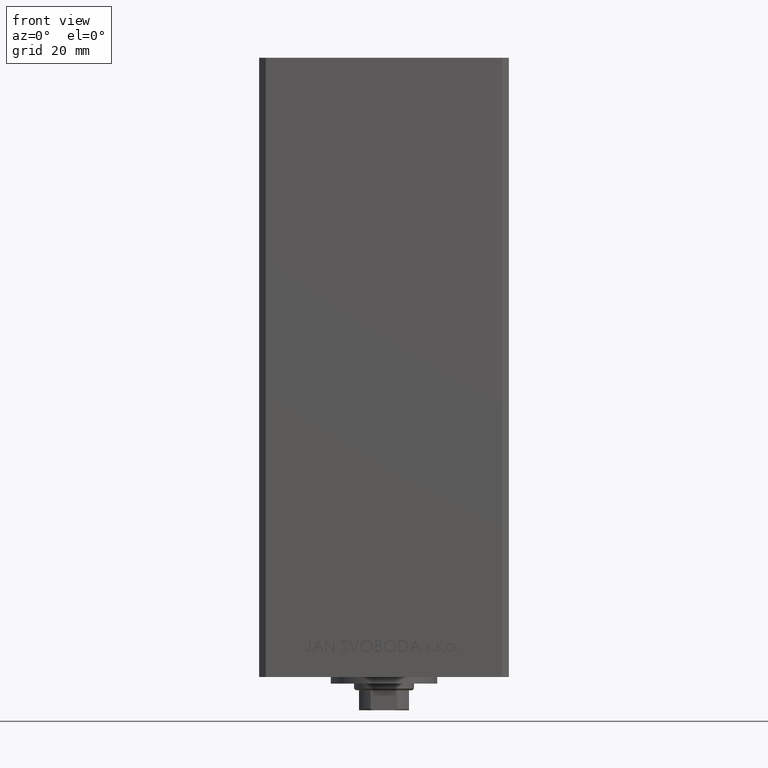
[diagram: clean part render]
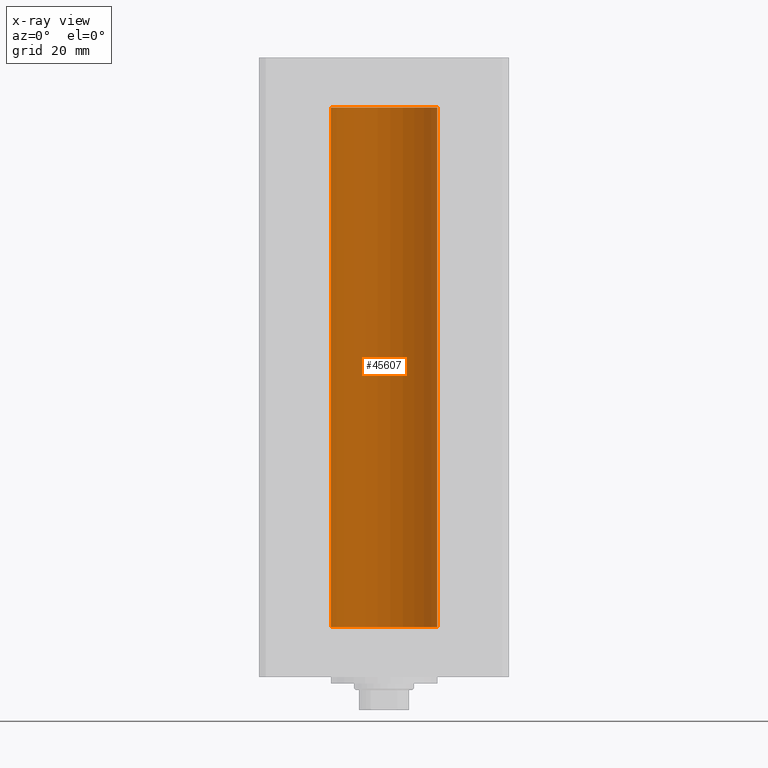
[diagram: x-ray — body ghosted, one internal face saturated and labeled with its STEP entity id]
A machine part, front view, then the same camera in x-ray: the body is ghosted and one INTERNAL B-rep face — a face not visible from any outside direction — is saturated and labeled: STEP entity #45607.
In plain terms, the highlighted cylindrical surface (partial cylindrical patch) has radius 16 mm, axis along (-0, -0, -1).
Its self-contained STEP definition (entity closure, byte-faithful):
#419 = CARTESIAN_POINT ( 'NONE',  ( -16.00000000000000000, 0.000000000000000000, 0.000000000000000000 ) ) ;
#3186 = CARTESIAN_POINT ( 'NONE',  ( 16.00000000000000000, 1.959434878635765131E-15, 0.000000000000000000 ) ) ;
#3496 = VECTOR ( 'NONE', #43844, 1000.000000000000000 ) ;
#9699 = LINE ( 'NONE', #28751, #43624 ) ;
#10019 = VERTEX_POINT ( 'NONE', #419 ) ;
#11580 = DIRECTION ( 'NONE',  ( -0.000000000000000000, -0.000000000000000000, -1.000000000000000000 ) ) ;
#13539 = DIRECTION ( 'NONE',  ( 1.000000000000000000, 0.000000000000000000, 0.000000000000000000 ) ) ;
#16453 = VERTEX_POINT ( 'NONE', #22089 ) ;
#16867 = CARTESIAN_POINT ( 'NONE',  ( 16.00000000000000000, 1.959434878635765131E-15, 156.0000000000000000 ) ) ;
#17921 = DIRECTION ( 'NONE',  ( 1.000000000000000000, 0.000000000000000000, 0.000000000000000000 ) ) ;
#20610 = EDGE_CURVE ( 'NONE', #29838, #16453, #37962, .T. ) ;
#22089 = CARTESIAN_POINT ( 'NONE',  ( -16.00000000000000000, 0.000000000000000000, 156.0000000000000000 ) ) ;
#22937 = AXIS2_PLACEMENT_3D ( 'NONE', #25354, #33752, #17921 ) ;
#24042 = LINE ( 'NONE', #16867, #3496 ) ;
#24490 = VERTEX_POINT ( 'NONE', #3186 ) ;
#24912 = DIRECTION ( 'NONE',  ( -0.000000000000000000, 0.000000000000000000, 1.000000000000000000 ) ) ;
#25354 = CARTESIAN_POINT ( 'NONE',  ( 0.000000000000000000, 0.000000000000000000, 156.0000000000000000 ) ) ;
#25497 = AXIS2_PLACEMENT_3D ( 'NONE', #27902, #24912, #13539 ) ;
#26539 = EDGE_CURVE ( 'NONE', #24490, #10019, #46831, .T. ) ;
#27902 = CARTESIAN_POINT ( 'NONE',  ( 0.000000000000000000, 0.000000000000000000, 0.000000000000000000 ) ) ;
#28201 = EDGE_CURVE ( 'NONE', #16453, #10019, #9699, .T. ) ;
#28751 = CARTESIAN_POINT ( 'NONE',  ( -16.00000000000000000, 0.000000000000000000, 156.0000000000000000 ) ) ;
#29508 = EDGE_LOOP ( 'NONE', ( #33098, #41899, #47094, #40178 ) ) ;
#29838 = VERTEX_POINT ( 'NONE', #37541 ) ;
#30163 = CYLINDRICAL_SURFACE ( 'NONE', #30922, 16.00000000000000000 ) ;
#30922 = AXIS2_PLACEMENT_3D ( 'NONE', #31129, #11580, #45262 ) ;
#31129 = CARTESIAN_POINT ( 'NONE',  ( 0.000000000000000000, 0.000000000000000000, 156.0000000000000000 ) ) ;
#33098 = ORIENTED_EDGE ( 'NONE', *, *, #33359, .F. ) ;
#33359 = EDGE_CURVE ( 'NONE', #29838, #24490, #24042, .T. ) ;
#33752 = DIRECTION ( 'NONE',  ( -0.000000000000000000, 0.000000000000000000, 1.000000000000000000 ) ) ;
#34847 = FACE_OUTER_BOUND ( 'NONE', #29508, .T. ) ;
#36173 = DIRECTION ( 'NONE',  ( -0.000000000000000000, -0.000000000000000000, -1.000000000000000000 ) ) ;
#37541 = CARTESIAN_POINT ( 'NONE',  ( 16.00000000000000000, 1.959434878635765131E-15, 156.0000000000000000 ) ) ;
#37962 = CIRCLE ( 'NONE', #22937, 16.00000000000000000 ) ;
#40178 = ORIENTED_EDGE ( 'NONE', *, *, #26539, .F. ) ;
#41899 = ORIENTED_EDGE ( 'NONE', *, *, #20610, .T. ) ;
#43624 = VECTOR ( 'NONE', #36173, 1000.000000000000000 ) ;
#43844 = DIRECTION ( 'NONE',  ( -0.000000000000000000, -0.000000000000000000, -1.000000000000000000 ) ) ;
#45262 = DIRECTION ( 'NONE',  ( -1.000000000000000000, 0.000000000000000000, 0.000000000000000000 ) ) ;
#45607 = ADVANCED_FACE ( 'NONE', ( #34847 ), #30163, .F. ) ;
#46831 = CIRCLE ( 'NONE', #25497, 16.00000000000000000 ) ;
#47094 = ORIENTED_EDGE ( 'NONE', *, *, #28201, .T. ) ;